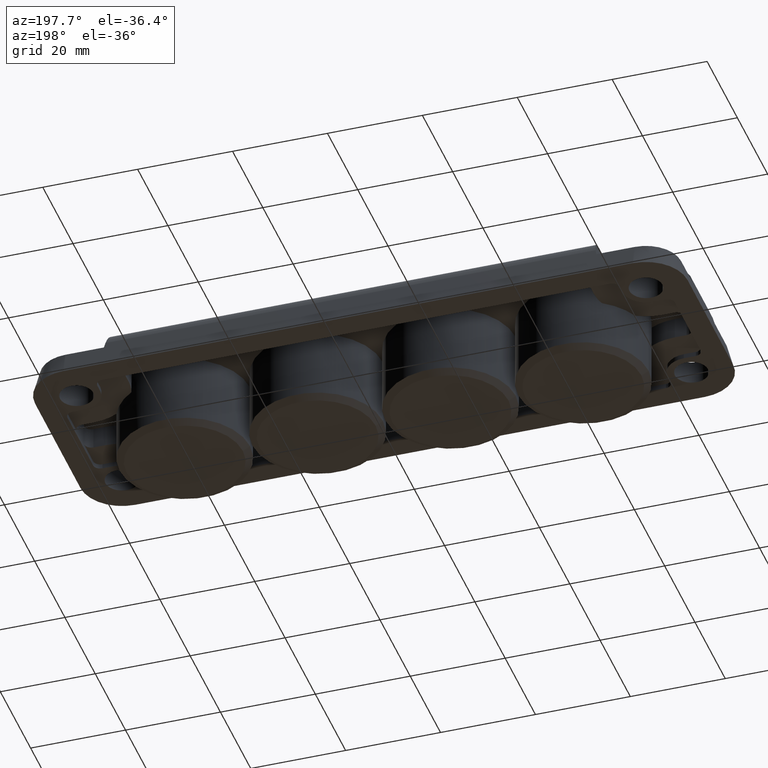
[diagram: clean part render]
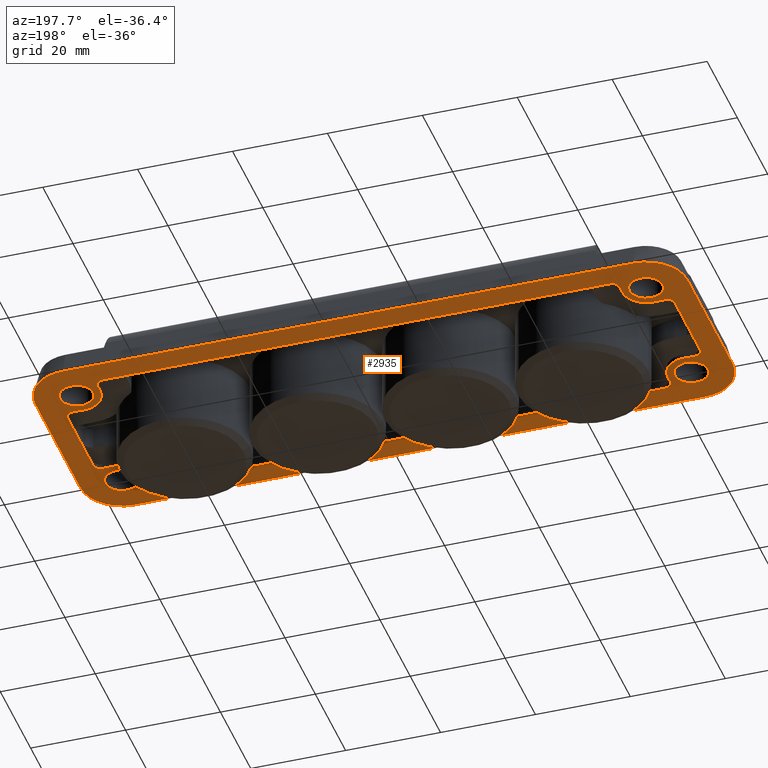
[diagram: same view with one face highlighted and labeled with its STEP entity id]
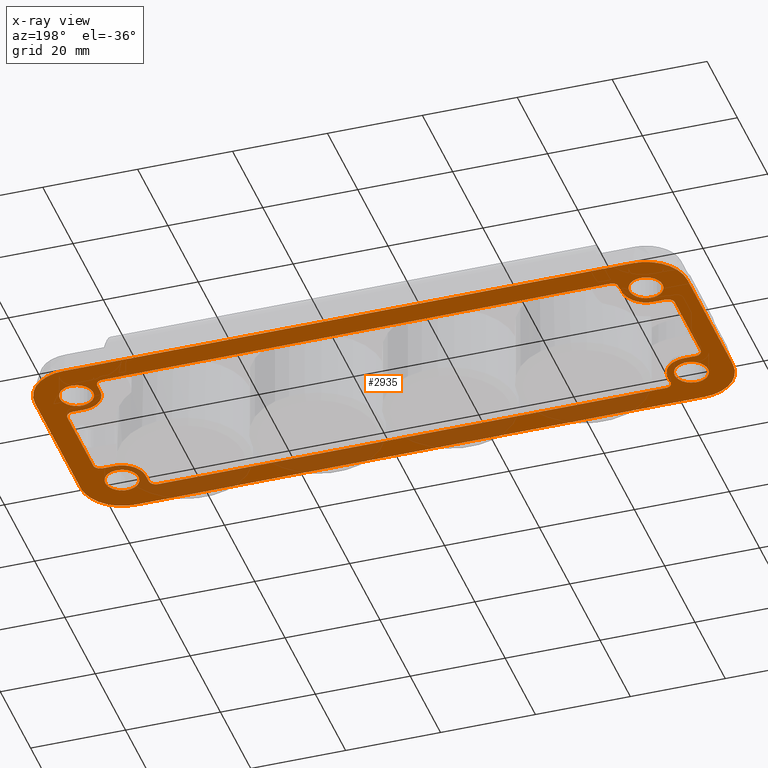
[diagram: x-ray of the same camera — body ghosted, the highlighted face saturated]
A machine part, auxiliary view. The second image highlights one B-rep face of the part: STEP entity #2935.
The next image is the same camera in x-ray: the body ghosted, the highlighted face saturated — about 23% of this face is hidden behind the body in this view.
In plain terms, the highlighted planar face has unit normal (-0, 0, -1).
Its self-contained STEP definition (entity closure, byte-faithful):
#4 = LINE ( 'NONE', #3397, #3236 ) ;
#12 = EDGE_CURVE ( 'NONE', #2942, #3243, #38, .T. ) ;
#18 = CARTESIAN_POINT ( 'NONE',  ( 55.00000000000000000, 17.00000000000001800, 0.0000000000000000000 ) ) ;
#24 = DIRECTION ( 'NONE',  ( -1.000000000000000000, 0.0000000000000000000, 0.0000000000000000000 ) ) ;
#26 = VERTEX_POINT ( 'NONE', #1358 ) ;
#38 = CIRCLE ( 'NONE', #342, 1.499999999999980500 ) ;
#40 = EDGE_CURVE ( 'NONE', #3297, #2908, #2025, .T. ) ;
#60 = CIRCLE ( 'NONE', #1074, 3.500000000000003100 ) ;
#69 = DIRECTION ( 'NONE',  ( -1.000000000000000000, 0.0000000000000000000, 0.0000000000000000000 ) ) ;
#92 = EDGE_CURVE ( 'NONE', #3829, #3943, #1788, .T. ) ;
#106 = CIRCLE ( 'NONE', #1234, 8.750000000000028400 ) ;
#117 = DIRECTION ( 'NONE',  ( -0.0000000000000000000, -0.0000000000000000000, -1.000000000000000000 ) ) ;
#121 = EDGE_CURVE ( 'NONE', #1900, #3654, #4053, .T. ) ;
#122 = CARTESIAN_POINT ( 'NONE',  ( -62.50000000000000000, 10.00000000000000700, 0.0000000000000000000 ) ) ;
#135 = CARTESIAN_POINT ( 'NONE',  ( -53.50000000000000000, -17.00000000000003200, 0.0000000000000000000 ) ) ;
#144 = CARTESIAN_POINT ( 'NONE',  ( -62.50000000000000000, -8.500000000000019500, 0.0000000000000000000 ) ) ;
#146 = VECTOR ( 'NONE', #1704, 1000.000000000000000 ) ;
#147 = VECTOR ( 'NONE', #1334, 1000.000000000000000 ) ;
#157 = DIRECTION ( 'NONE',  ( -1.000000000000000000, 0.0000000000000000000, 0.0000000000000000000 ) ) ;
#169 = DIRECTION ( 'NONE',  ( -0.0000000000000000000, -0.0000000000000000000, 1.000000000000000000 ) ) ;
#170 = DIRECTION ( 'NONE',  ( -1.000000000000000000, 0.0000000000000000000, 0.0000000000000000000 ) ) ;
#176 = DIRECTION ( 'NONE',  ( 1.000000000000000000, 0.0000000000000000000, 0.0000000000000000000 ) ) ;
#177 = VERTEX_POINT ( 'NONE', #1125 ) ;
#187 = ORIENTED_EDGE ( 'NONE', *, *, #3375, .F. ) ;
#240 = CARTESIAN_POINT ( 'NONE',  ( -63.50000000000000000, -15.00000000000000500, 0.0000000000000000000 ) ) ;
#256 = CARTESIAN_POINT ( 'NONE',  ( 60.00000000000000000, -14.99999999999999300, 0.0000000000000000000 ) ) ;
#257 = EDGE_CURVE ( 'NONE', #3768, #3829, #2709, .T. ) ;
#266 = DIRECTION ( 'NONE',  ( 0.0000000000000000000, 0.0000000000000000000, 1.000000000000000000 ) ) ;
#270 = VERTEX_POINT ( 'NONE', #3022 ) ;
#274 = AXIS2_PLACEMENT_3D ( 'NONE', #2004, #169, #157 ) ;
#294 = LINE ( 'NONE', #2955, #3219 ) ;
#296 = CIRCLE ( 'NONE', #3322, 8.750000000000028400 ) ;
#314 = CARTESIAN_POINT ( 'NONE',  ( -60.00000000000000000, -15.00000000000000500, 0.0000000000000000000 ) ) ;
#327 = DIRECTION ( 'NONE',  ( 0.0000000000000000000, 0.0000000000000000000, 1.000000000000000000 ) ) ;
#331 = CARTESIAN_POINT ( 'NONE',  ( -60.00000000000000000, 14.99999999999999500, 0.0000000000000000000 ) ) ;
#342 = AXIS2_PLACEMENT_3D ( 'NONE', #1048, #3571, #725 ) ;
#346 = CARTESIAN_POINT ( 'NONE',  ( 55.00000000000000700, -15.00000000000001800, 0.0000000000000000000 ) ) ;
#347 = FACE_BOUND ( 'NONE', #2104, .T. ) ;
#349 = CARTESIAN_POINT ( 'NONE',  ( -53.50000000000000000, -18.49999999999999600, 0.0000000000000000000 ) ) ;
#356 = DIRECTION ( 'NONE',  ( -1.000000000000000000, -0.0000000000000000000, -0.0000000000000000000 ) ) ;
#364 = CIRCLE ( 'NONE', #1610, 1.500000000000001300 ) ;
#389 = CARTESIAN_POINT ( 'NONE',  ( 60.00000000000000000, -15.00000000000001200, 0.0000000000000000000 ) ) ;
#395 = CARTESIAN_POINT ( 'NONE',  ( 64.00000000000000000, 8.500000000000007100, 0.0000000000000000000 ) ) ;
#410 = VERTEX_POINT ( 'NONE', #2516 ) ;
#416 = DIRECTION ( 'NONE',  ( -1.000000000000000000, -0.0000000000000000000, -0.0000000000000000000 ) ) ;
#422 = CARTESIAN_POINT ( 'NONE',  ( 54.99999999999999300, -17.00000000000003200, 0.0000000000000000000 ) ) ;
#433 = EDGE_CURVE ( 'NONE', #410, #2942, #582, .T. ) ;
#455 = DIRECTION ( 'NONE',  ( 0.0000000000000000000, 0.0000000000000000000, 1.000000000000000000 ) ) ;
#461 = LINE ( 'NONE', #3664, #3598 ) ;
#487 = VERTEX_POINT ( 'NONE', #2503 ) ;
#488 = VECTOR ( 'NONE', #416, 1000.000000000000000 ) ;
#489 = EDGE_CURVE ( 'NONE', #1102, #177, #3515, .T. ) ;
#507 = CARTESIAN_POINT ( 'NONE',  ( -68.75000000000001400, 14.99999999999999600, 0.0000000000000000000 ) ) ;
#511 = EDGE_CURVE ( 'NONE', #1609, #3297, #1741, .T. ) ;
#525 = VERTEX_POINT ( 'NONE', #2877 ) ;
#527 = DIRECTION ( 'NONE',  ( -1.000000000000000000, 0.0000000000000000000, 0.0000000000000000000 ) ) ;
#553 = EDGE_CURVE ( 'NONE', #1598, #410, #4058, .T. ) ;
#582 = LINE ( 'NONE', #2462, #3361 ) ;
#583 = AXIS2_PLACEMENT_3D ( 'NONE', #1588, #1294, #3753 ) ;
#596 = CIRCLE ( 'NONE', #3995, 1.499999999999980500 ) ;
#600 = DIRECTION ( 'NONE',  ( 1.000000000000000000, 0.0000000000000000000, 0.0000000000000000000 ) ) ;
#604 = CARTESIAN_POINT ( 'NONE',  ( 68.75000000000001400, 14.99999999999999600, 0.0000000000000000000 ) ) ;
#622 = EDGE_CURVE ( 'NONE', #1848, #2315, #1599, .T. ) ;
#634 = DIRECTION ( 'NONE',  ( -1.000000000000000000, 0.0000000000000000000, 0.0000000000000000000 ) ) ;
#643 = AXIS2_PLACEMENT_3D ( 'NONE', #2685, #1786, #3328 ) ;
#647 = CARTESIAN_POINT ( 'NONE',  ( 60.00000000000000700, -10.00000000000002100, 0.0000000000000000000 ) ) ;
#659 = DIRECTION ( 'NONE',  ( -1.000000000000000000, 0.0000000000000000000, 0.0000000000000000000 ) ) ;
#668 = EDGE_CURVE ( 'NONE', #3559, #1859, #924, .T. ) ;
#681 = CIRCLE ( 'NONE', #583, 3.500000000000003100 ) ;
#703 = CARTESIAN_POINT ( 'NONE',  ( 60.00000000000000700, -10.00000000000002100, 0.0000000000000000000 ) ) ;
#719 = DIRECTION ( 'NONE',  ( 1.000000000000000000, 0.0000000000000000000, 0.0000000000000000000 ) ) ;
#725 = DIRECTION ( 'NONE',  ( -1.000000000000000000, 0.0000000000000000000, 0.0000000000000000000 ) ) ;
#741 = DIRECTION ( 'NONE',  ( -1.000000000000000000, 0.0000000000000000000, 0.0000000000000000000 ) ) ;
#810 = CARTESIAN_POINT ( 'NONE',  ( -62.50000000000000000, -10.00000000000002100, 0.0000000000000000000 ) ) ;
#830 = CARTESIAN_POINT ( 'NONE',  ( 60.00000000000000700, 23.75000000000001400, 0.0000000000000000000 ) ) ;
#831 = VERTEX_POINT ( 'NONE', #3939 ) ;
#834 = CARTESIAN_POINT ( 'NONE',  ( 53.50000000000000000, -17.00000000000003200, 0.0000000000000000000 ) ) ;
#840 = DIRECTION ( 'NONE',  ( 1.000000000000000000, 0.0000000000000000000, 0.0000000000000000000 ) ) ;
#846 = CIRCLE ( 'NONE', #2132, 3.500000000000003100 ) ;
#854 = ORIENTED_EDGE ( 'NONE', *, *, #3841, .F. ) ;
#858 = DIRECTION ( 'NONE',  ( 0.0000000000000000000, 0.0000000000000000000, -1.000000000000000000 ) ) ;
#880 = VERTEX_POINT ( 'NONE', #2430 ) ;
#884 = EDGE_CURVE ( 'NONE', #487, #1817, #296, .T. ) ;
#890 = CIRCLE ( 'NONE', #1618, 8.750000000000021300 ) ;
#894 = DIRECTION ( 'NONE',  ( 0.0000000000000000000, 0.0000000000000000000, 1.000000000000000000 ) ) ;
#897 = CARTESIAN_POINT ( 'NONE',  ( 68.75000000000002800, -14.99999999999997700, 0.0000000000000000000 ) ) ;
#902 = EDGE_CURVE ( 'NONE', #2908, #26, #2620, .T. ) ;
#919 = AXIS2_PLACEMENT_3D ( 'NONE', #2276, #2913, #2892 ) ;
#924 = CIRCLE ( 'NONE', #3905, 1.500000000000001300 ) ;
#926 = LINE ( 'NONE', #1070, #1174 ) ;
#931 = FACE_OUTER_BOUND ( 'NONE', #2268, .T. ) ;
#936 = DIRECTION ( 'NONE',  ( 0.0000000000000000000, 0.0000000000000000000, 1.000000000000000000 ) ) ;
#939 = CARTESIAN_POINT ( 'NONE',  ( -60.00000000000000000, 14.99999999999999500, 0.0000000000000000000 ) ) ;
#943 = CARTESIAN_POINT ( 'NONE',  ( -60.00000000000001400, -23.75000000000000700, 0.0000000000000000000 ) ) ;
#964 = DIRECTION ( 'NONE',  ( 0.0000000000000000000, -1.000000000000000000, 0.0000000000000000000 ) ) ;
#970 = ORIENTED_EDGE ( 'NONE', *, *, #3152, .T. ) ;
#979 = EDGE_CURVE ( 'NONE', #880, #2403, #681, .T. ) ;
#980 = DIRECTION ( 'NONE',  ( -1.000000000000000000, -0.0000000000000000000, -0.0000000000000000000 ) ) ;
#994 = DIRECTION ( 'NONE',  ( -1.000000000000000000, 0.0000000000000000000, 0.0000000000000000000 ) ) ;
#997 = ORIENTED_EDGE ( 'NONE', *, *, #553, .F. ) ;
#1001 = EDGE_CURVE ( 'NONE', #2555, #3557, #2326, .T. ) ;
#1006 = ORIENTED_EDGE ( 'NONE', *, *, #257, .F. ) ;
#1027 = DIRECTION ( 'NONE',  ( 0.0000000000000000000, 0.0000000000000000000, 1.000000000000000000 ) ) ;
#1038 = DIRECTION ( 'NONE',  ( -1.000000000000000000, 0.0000000000000000000, 0.0000000000000000000 ) ) ;
#1040 = EDGE_CURVE ( 'NONE', #3848, #3768, #2125, .T. ) ;
#1048 = CARTESIAN_POINT ( 'NONE',  ( -53.50000000000000700, 17.00000000000001800, 0.0000000000000000000 ) ) ;
#1061 = CARTESIAN_POINT ( 'NONE',  ( -60.00000000000000700, 14.99999999999999300, 0.0000000000000000000 ) ) ;
#1068 = ORIENTED_EDGE ( 'NONE', *, *, #622, .T. ) ;
#1070 = CARTESIAN_POINT ( 'NONE',  ( -60.00000000000000700, -10.00000000000002100, 0.0000000000000000000 ) ) ;
#1074 = AXIS2_PLACEMENT_3D ( 'NONE', #389, #1352, #69 ) ;
#1102 = VERTEX_POINT ( 'NONE', #2885 ) ;
#1110 = CARTESIAN_POINT ( 'NONE',  ( 54.99999999999999300, -17.00000000000003200, 0.0000000000000000000 ) ) ;
#1121 = EDGE_CURVE ( 'NONE', #2403, #880, #1307, .T. ) ;
#1125 = CARTESIAN_POINT ( 'NONE',  ( 54.99999999999999300, 15.00000000000000700, 0.0000000000000000000 ) ) ;
#1131 = EDGE_CURVE ( 'NONE', #3447, #1598, #1362, .T. ) ;
#1133 = DIRECTION ( 'NONE',  ( -0.0000000000000000000, -0.0000000000000000000, 1.000000000000000000 ) ) ;
#1151 = ORIENTED_EDGE ( 'NONE', *, *, #3147, .F. ) ;
#1153 = ORIENTED_EDGE ( 'NONE', *, *, #979, .T. ) ;
#1174 = VECTOR ( 'NONE', #1983, 1000.000000000000000 ) ;
#1183 = CARTESIAN_POINT ( 'NONE',  ( -60.00000000000001400, -23.74999999999999600, 0.0000000000000000000 ) ) ;
#1218 = CARTESIAN_POINT ( 'NONE',  ( -64.00000000000000000, -8.500000000000024900, 0.0000000000000000000 ) ) ;
#1234 = AXIS2_PLACEMENT_3D ( 'NONE', #2434, #894, #600 ) ;
#1242 = DIRECTION ( 'NONE',  ( 0.0000000000000000000, 0.0000000000000000000, 1.000000000000000000 ) ) ;
#1249 = VERTEX_POINT ( 'NONE', #3912 ) ;
#1258 = CIRCLE ( 'NONE', #1776, 4.999999999999990200 ) ;
#1269 = DIRECTION ( 'NONE',  ( 0.0000000000000000000, 0.0000000000000000000, 1.000000000000000000 ) ) ;
#1281 = CIRCLE ( 'NONE', #274, 5.000000000000004400 ) ;
#1294 = DIRECTION ( 'NONE',  ( 0.0000000000000000000, 0.0000000000000000000, 1.000000000000000000 ) ) ;
#1304 = CARTESIAN_POINT ( 'NONE',  ( 56.49999999999999300, -15.00000000000001200, 0.0000000000000000000 ) ) ;
#1307 = CIRCLE ( 'NONE', #3160, 3.500000000000003100 ) ;
#1334 = DIRECTION ( 'NONE',  ( 1.000000000000000000, -0.0000000000000000000, -0.0000000000000000000 ) ) ;
#1336 = VERTEX_POINT ( 'NONE', #830 ) ;
#1349 = ORIENTED_EDGE ( 'NONE', *, *, #3071, .F. ) ;
#1352 = DIRECTION ( 'NONE',  ( 0.0000000000000000000, 0.0000000000000000000, 1.000000000000000000 ) ) ;
#1358 = CARTESIAN_POINT ( 'NONE',  ( -54.99999999999998600, -15.00000000000002000, 0.0000000000000000000 ) ) ;
#1359 = AXIS2_PLACEMENT_3D ( 'NONE', #2612, #455, #170 ) ;
#1362 = LINE ( 'NONE', #3562, #147 ) ;
#1372 = CARTESIAN_POINT ( 'NONE',  ( -54.99999999999997900, -17.00000000000003200, 0.0000000000000000000 ) ) ;
#1374 = EDGE_CURVE ( 'NONE', #831, #3848, #364, .T. ) ;
#1390 = EDGE_LOOP ( 'NONE', ( #3816, #2610 ) ) ;
#1392 = ORIENTED_EDGE ( 'NONE', *, *, #1040, .F. ) ;
#1403 = EDGE_CURVE ( 'NONE', #3991, #3106, #461, .T. ) ;
#1450 = ORIENTED_EDGE ( 'NONE', *, *, #1600, .F. ) ;
#1465 = EDGE_CURVE ( 'NONE', #1967, #1249, #60, .T. ) ;
#1474 = EDGE_CURVE ( 'NONE', #3654, #2805, #2838, .T. ) ;
#1500 = ORIENTED_EDGE ( 'NONE', *, *, #1374, .F. ) ;
#1522 = DIRECTION ( 'NONE',  ( 3.469446951953592900E-015, 1.000000000000000000, 0.0000000000000000000 ) ) ;
#1544 = DIRECTION ( 'NONE',  ( -1.000000000000000000, 0.0000000000000000000, 0.0000000000000000000 ) ) ;
#1583 = AXIS2_PLACEMENT_3D ( 'NONE', #135, #2281, #2602 ) ;
#1588 = CARTESIAN_POINT ( 'NONE',  ( 60.00000000000000000, 14.99999999999998800, 0.0000000000000000000 ) ) ;
#1598 = VERTEX_POINT ( 'NONE', #3631 ) ;
#1599 = CIRCLE ( 'NONE', #1359, 3.500000000000003100 ) ;
#1600 = EDGE_CURVE ( 'NONE', #177, #1900, #1281, .T. ) ;
#1609 = VERTEX_POINT ( 'NONE', #1994 ) ;
#1610 = AXIS2_PLACEMENT_3D ( 'NONE', #3696, #858, #527 ) ;
#1611 = CARTESIAN_POINT ( 'NONE',  ( 62.50000000000000000, -10.00000000000002100, 0.0000000000000000000 ) ) ;
#1614 = CARTESIAN_POINT ( 'NONE',  ( -63.50000000000000000, 14.99999999999999500, 0.0000000000000000000 ) ) ;
#1618 = AXIS2_PLACEMENT_3D ( 'NONE', #3849, #1027, #994 ) ;
#1650 = CARTESIAN_POINT ( 'NONE',  ( -53.50000000000000700, 18.49999999999999600, 0.0000000000000000000 ) ) ;
#1655 = CIRCLE ( 'NONE', #2375, 3.500000000000003100 ) ;
#1661 = ORIENTED_EDGE ( 'NONE', *, *, #1474, .F. ) ;
#1674 = DIRECTION ( 'NONE',  ( 1.000000000000000000, 0.0000000000000000000, 0.0000000000000000000 ) ) ;
#1675 = VERTEX_POINT ( 'NONE', #3303 ) ;
#1693 = VECTOR ( 'NONE', #964, 1000.000000000000000 ) ;
#1704 = DIRECTION ( 'NONE',  ( 3.469446951953592900E-015, -1.000000000000000000, -0.0000000000000000000 ) ) ;
#1717 = DIRECTION ( 'NONE',  ( 0.0000000000000000000, 0.0000000000000000000, 1.000000000000000000 ) ) ;
#1730 = ORIENTED_EDGE ( 'NONE', *, *, #884, .F. ) ;
#1737 = EDGE_LOOP ( 'NONE', ( #2100, #1153 ) ) ;
#1741 = LINE ( 'NONE', #349, #488 ) ;
#1747 = CARTESIAN_POINT ( 'NONE',  ( -60.00000000000000000, -14.99999999999999300, 0.0000000000000000000 ) ) ;
#1769 = ORIENTED_EDGE ( 'NONE', *, *, #433, .F. ) ;
#1776 = AXIS2_PLACEMENT_3D ( 'NONE', #1747, #1133, #3962 ) ;
#1786 = DIRECTION ( 'NONE',  ( -0.0000000000000000000, -0.0000000000000000000, -1.000000000000000000 ) ) ;
#1788 = LINE ( 'NONE', #422, #146 ) ;
#1812 = DIRECTION ( 'NONE',  ( 0.0000000000000000000, 0.0000000000000000000, 1.000000000000000000 ) ) ;
#1817 = VERTEX_POINT ( 'NONE', #507 ) ;
#1821 = CARTESIAN_POINT ( 'NONE',  ( -60.00000000000000700, 14.99999999999999300, 0.0000000000000000000 ) ) ;
#1830 = AXIS2_PLACEMENT_3D ( 'NONE', #331, #936, #659 ) ;
#1833 = ORIENTED_EDGE ( 'NONE', *, *, #40, .F. ) ;
#1835 = EDGE_CURVE ( 'NONE', #1249, #1967, #846, .T. ) ;
#1848 = VERTEX_POINT ( 'NONE', #3120 ) ;
#1854 = CARTESIAN_POINT ( 'NONE',  ( 63.50000000000000000, 14.99999999999998800, 0.0000000000000000000 ) ) ;
#1859 = VERTEX_POINT ( 'NONE', #1218 ) ;
#1900 = VERTEX_POINT ( 'NONE', #2152 ) ;
#1902 = CARTESIAN_POINT ( 'NONE',  ( -64.00000000000000000, 8.500000000000007100, 0.0000000000000000000 ) ) ;
#1944 = VECTOR ( 'NONE', #2794, 1000.000000000000000 ) ;
#1957 = CARTESIAN_POINT ( 'NONE',  ( -53.50000000000000000, -18.49999999999999600, 0.0000000000000000000 ) ) ;
#1967 = VERTEX_POINT ( 'NONE', #1304 ) ;
#1983 = DIRECTION ( 'NONE',  ( -1.000000000000000000, 0.0000000000000000000, 0.0000000000000000000 ) ) ;
#1984 = ORIENTED_EDGE ( 'NONE', *, *, #2856, .F. ) ;
#1993 = CIRCLE ( 'NONE', #1830, 3.500000000000003100 ) ;
#1994 = CARTESIAN_POINT ( 'NONE',  ( 53.50000000000000000, -18.50000000000001100, 0.0000000000000000000 ) ) ;
#1995 = LINE ( 'NONE', #943, #1944 ) ;
#2004 = CARTESIAN_POINT ( 'NONE',  ( 60.00000000000000700, 15.00000000000000700, 0.0000000000000000000 ) ) ;
#2025 = CIRCLE ( 'NONE', #1583, 1.499999999999980500 ) ;
#2100 = ORIENTED_EDGE ( 'NONE', *, *, #1121, .T. ) ;
#2104 = EDGE_LOOP ( 'NONE', ( #1068, #970 ) ) ;
#2125 = LINE ( 'NONE', #647, #2714 ) ;
#2128 = ORIENTED_EDGE ( 'NONE', *, *, #3632, .F. ) ;
#2132 = AXIS2_PLACEMENT_3D ( 'NONE', #3715, #1242, #634 ) ;
#2152 = CARTESIAN_POINT ( 'NONE',  ( 60.00000000000000700, 10.00000000000000700, 0.0000000000000000000 ) ) ;
#2180 = CIRCLE ( 'NONE', #3233, 1.500000000000001300 ) ;
#2188 = EDGE_LOOP ( 'NONE', ( #3688, #3498 ) ) ;
#2206 = ORIENTED_EDGE ( 'NONE', *, *, #902, .F. ) ;
#2223 = DIRECTION ( 'NONE',  ( 0.0000000000000000000, 0.0000000000000000000, 1.000000000000000000 ) ) ;
#2232 = CARTESIAN_POINT ( 'NONE',  ( 64.00000000000000000, 8.500000000000007100, 0.0000000000000000000 ) ) ;
#2268 = EDGE_LOOP ( 'NONE', ( #1730, #3591, #4023, #3458, #3693, #3936, #1349, #3974 ) ) ;
#2276 = CARTESIAN_POINT ( 'NONE',  ( 62.50000000000000000, 8.500000000000005300, 0.0000000000000000000 ) ) ;
#2278 = FACE_BOUND ( 'NONE', #2188, .T. ) ;
#2281 = DIRECTION ( 'NONE',  ( -0.0000000000000000000, -0.0000000000000000000, -1.000000000000000000 ) ) ;
#2283 = CARTESIAN_POINT ( 'NONE',  ( -64.00000000000000000, 8.500000000000007100, 0.0000000000000000000 ) ) ;
#2309 = DIRECTION ( 'NONE',  ( -0.0000000000000000000, -1.000000000000000000, -0.0000000000000000000 ) ) ;
#2315 = VERTEX_POINT ( 'NONE', #240 ) ;
#2320 = ORIENTED_EDGE ( 'NONE', *, *, #12, .F. ) ;
#2326 = CIRCLE ( 'NONE', #3731, 3.500000000000003100 ) ;
#2329 = CARTESIAN_POINT ( 'NONE',  ( 60.00000000000000700, 10.00000000000000700, 0.0000000000000000000 ) ) ;
#2374 = VECTOR ( 'NONE', #3732, 1000.000000000000000 ) ;
#2375 = AXIS2_PLACEMENT_3D ( 'NONE', #314, #327, #1544 ) ;
#2399 = EDGE_CURVE ( 'NONE', #3106, #1336, #106, .T. ) ;
#2403 = VERTEX_POINT ( 'NONE', #1854 ) ;
#2407 = VERTEX_POINT ( 'NONE', #1183 ) ;
#2411 = DIRECTION ( 'NONE',  ( 0.0000000000000000000, 0.0000000000000000000, -1.000000000000000000 ) ) ;
#2430 = CARTESIAN_POINT ( 'NONE',  ( 56.49999999999999300, 14.99999999999998800, 0.0000000000000000000 ) ) ;
#2434 = CARTESIAN_POINT ( 'NONE',  ( 60.00000000000000700, 14.99999999999999300, 0.0000000000000000000 ) ) ;
#2439 = EDGE_CURVE ( 'NONE', #1336, #487, #4, .T. ) ;
#2452 = CARTESIAN_POINT ( 'NONE',  ( -60.00000000000001400, -14.99999999999997900, 0.0000000000000000000 ) ) ;
#2462 = CARTESIAN_POINT ( 'NONE',  ( -55.00000000000000000, 17.00000000000001800, 0.0000000000000000000 ) ) ;
#2467 = ORIENTED_EDGE ( 'NONE', *, *, #1131, .F. ) ;
#2496 = EDGE_CURVE ( 'NONE', #2407, #1675, #1995, .T. ) ;
#2503 = CARTESIAN_POINT ( 'NONE',  ( -60.00000000000000700, 23.75000000000002100, 0.0000000000000000000 ) ) ;
#2516 = CARTESIAN_POINT ( 'NONE',  ( -54.99999999999997900, 15.00000000000000700, 0.0000000000000000000 ) ) ;
#2520 = VECTOR ( 'NONE', #840, 1000.000000000000000 ) ;
#2529 = AXIS2_PLACEMENT_3D ( 'NONE', #2452, #1717, #176 ) ;
#2555 = VERTEX_POINT ( 'NONE', #1614 ) ;
#2580 = FACE_BOUND ( 'NONE', #1390, .T. ) ;
#2584 = EDGE_CURVE ( 'NONE', #3243, #3997, #2780, .T. ) ;
#2591 = EDGE_CURVE ( 'NONE', #1675, #3991, #890, .T. ) ;
#2593 = PLANE ( 'NONE',  #2819 ) ;
#2602 = DIRECTION ( 'NONE',  ( 1.000000000000000000, 0.0000000000000000000, 0.0000000000000000000 ) ) ;
#2610 = ORIENTED_EDGE ( 'NONE', *, *, #1001, .T. ) ;
#2612 = CARTESIAN_POINT ( 'NONE',  ( -60.00000000000000000, -15.00000000000000500, 0.0000000000000000000 ) ) ;
#2620 = LINE ( 'NONE', #2742, #3812 ) ;
#2631 = CARTESIAN_POINT ( 'NONE',  ( -55.00000000000000000, 17.00000000000001800, 0.0000000000000000000 ) ) ;
#2650 = EDGE_CURVE ( 'NONE', #3557, #2555, #1993, .T. ) ;
#2685 = CARTESIAN_POINT ( 'NONE',  ( 53.50000000000000700, 17.00000000000001800, 0.0000000000000000000 ) ) ;
#2709 = CIRCLE ( 'NONE', #3828, 4.999999999999990200 ) ;
#2711 = DIRECTION ( 'NONE',  ( -1.000000000000000000, 0.0000000000000000000, 0.0000000000000000000 ) ) ;
#2714 = VECTOR ( 'NONE', #356, 1000.000000000000000 ) ;
#2742 = CARTESIAN_POINT ( 'NONE',  ( -54.99999999999999300, -17.00000000000003200, 0.0000000000000000000 ) ) ;
#2751 = ORIENTED_EDGE ( 'NONE', *, *, #121, .F. ) ;
#2780 = LINE ( 'NONE', #3178, #3383 ) ;
#2782 = DIRECTION ( 'NONE',  ( -1.000000000000000000, 0.0000000000000000000, 0.0000000000000000000 ) ) ;
#2791 = EDGE_LOOP ( 'NONE', ( #1450, #3851, #4057, #3289, #2320, #1769, #997, #2467, #1151, #1984, #2951, #187, #2934, #2206, #1833, #3610, #2128, #3788, #1006, #1392, #1500, #854, #1661, #2751 ) ) ;
#2794 = DIRECTION ( 'NONE',  ( 1.000000000000000000, 0.0000000000000000000, 0.0000000000000000000 ) ) ;
#2797 = CARTESIAN_POINT ( 'NONE',  ( -62.50000000000000000, 8.500000000000005300, 0.0000000000000000000 ) ) ;
#2805 = VERTEX_POINT ( 'NONE', #395 ) ;
#2819 = AXIS2_PLACEMENT_3D ( 'NONE', #1061, #3270, #741 ) ;
#2838 = CIRCLE ( 'NONE', #919, 1.500000000000001300 ) ;
#2855 = CARTESIAN_POINT ( 'NONE',  ( 60.00000000000000000, 14.99999999999998800, 0.0000000000000000000 ) ) ;
#2856 = EDGE_CURVE ( 'NONE', #1859, #3201, #3122, .T. ) ;
#2875 = DIRECTION ( 'NONE',  ( 1.000000000000000000, 0.0000000000000000000, 0.0000000000000000000 ) ) ;
#2877 = CARTESIAN_POINT ( 'NONE',  ( -68.75000000000001400, -14.99999999999997900, 0.0000000000000000000 ) ) ;
#2885 = CARTESIAN_POINT ( 'NONE',  ( 54.99999999999998600, 17.00000000000001800, 0.0000000000000000000 ) ) ;
#2892 = DIRECTION ( 'NONE',  ( 1.000000000000000000, 0.0000000000000000000, 0.0000000000000000000 ) ) ;
#2908 = VERTEX_POINT ( 'NONE', #1372 ) ;
#2913 = DIRECTION ( 'NONE',  ( -0.0000000000000000000, -0.0000000000000000000, -1.000000000000000000 ) ) ;
#2934 = ORIENTED_EDGE ( 'NONE', *, *, #4026, .F. ) ;
#2935 = ADVANCED_FACE ( 'NONE', ( #2278, #3776, #347, #2580, #3963, #931 ), #2593, .T. ) ;
#2942 = VERTEX_POINT ( 'NONE', #2631 ) ;
#2951 = ORIENTED_EDGE ( 'NONE', *, *, #668, .F. ) ;
#2955 = CARTESIAN_POINT ( 'NONE',  ( -68.75000000000001400, -14.99999999999997900, 0.0000000000000000000 ) ) ;
#3016 = CARTESIAN_POINT ( 'NONE',  ( 62.50000000000000000, 10.00000000000000700, 0.0000000000000000000 ) ) ;
#3022 = CARTESIAN_POINT ( 'NONE',  ( -60.00000000000000700, -10.00000000000000200, 0.0000000000000000000 ) ) ;
#3068 = DIRECTION ( 'NONE',  ( -1.000000000000000000, 0.0000000000000000000, 0.0000000000000000000 ) ) ;
#3071 = EDGE_CURVE ( 'NONE', #525, #2407, #4017, .T. ) ;
#3106 = VERTEX_POINT ( 'NONE', #604 ) ;
#3120 = CARTESIAN_POINT ( 'NONE',  ( -56.49999999999999300, -15.00000000000000500, 0.0000000000000000000 ) ) ;
#3122 = LINE ( 'NONE', #2283, #3677 ) ;
#3147 = EDGE_CURVE ( 'NONE', #3201, #3447, #2180, .T. ) ;
#3152 = EDGE_CURVE ( 'NONE', #2315, #1848, #1655, .T. ) ;
#3160 = AXIS2_PLACEMENT_3D ( 'NONE', #2855, #3208, #1038 ) ;
#3178 = CARTESIAN_POINT ( 'NONE',  ( -53.50000000000000700, 18.49999999999998200, 0.0000000000000000000 ) ) ;
#3182 = CARTESIAN_POINT ( 'NONE',  ( -59.99999999999999300, 15.00000000000002800, 0.0000000000000000000 ) ) ;
#3201 = VERTEX_POINT ( 'NONE', #1902 ) ;
#3208 = DIRECTION ( 'NONE',  ( 0.0000000000000000000, 0.0000000000000000000, 1.000000000000000000 ) ) ;
#3219 = VECTOR ( 'NONE', #2309, 1000.000000000000000 ) ;
#3233 = AXIS2_PLACEMENT_3D ( 'NONE', #2797, #3460, #2782 ) ;
#3236 = VECTOR ( 'NONE', #980, 1000.000000000000000 ) ;
#3243 = VERTEX_POINT ( 'NONE', #1650 ) ;
#3270 = DIRECTION ( 'NONE',  ( -0.0000000000000000000, 0.0000000000000000000, -1.000000000000000000 ) ) ;
#3289 = ORIENTED_EDGE ( 'NONE', *, *, #2584, .F. ) ;
#3297 = VERTEX_POINT ( 'NONE', #1957 ) ;
#3303 = CARTESIAN_POINT ( 'NONE',  ( 60.00000000000001400, -23.75000000000000700, 0.0000000000000000000 ) ) ;
#3322 = AXIS2_PLACEMENT_3D ( 'NONE', #1821, #266, #3068 ) ;
#3328 = DIRECTION ( 'NONE',  ( 1.000000000000000000, 0.0000000000000000000, 0.0000000000000000000 ) ) ;
#3361 = VECTOR ( 'NONE', #4036, 1000.000000000000000 ) ;
#3375 = EDGE_CURVE ( 'NONE', #270, #3559, #926, .T. ) ;
#3383 = VECTOR ( 'NONE', #2875, 1000.000000000000000 ) ;
#3397 = CARTESIAN_POINT ( 'NONE',  ( -60.00000000000000700, 23.75000000000002100, 0.0000000000000000000 ) ) ;
#3407 = AXIS2_PLACEMENT_3D ( 'NONE', #3182, #2223, #719 ) ;
#3426 = LINE ( 'NONE', #2232, #1693 ) ;
#3447 = VERTEX_POINT ( 'NONE', #122 ) ;
#3458 = ORIENTED_EDGE ( 'NONE', *, *, #1403, .F. ) ;
#3460 = DIRECTION ( 'NONE',  ( 0.0000000000000000000, 0.0000000000000000000, -1.000000000000000000 ) ) ;
#3498 = ORIENTED_EDGE ( 'NONE', *, *, #1465, .T. ) ;
#3515 = LINE ( 'NONE', #18, #2374 ) ;
#3557 = VERTEX_POINT ( 'NONE', #3648 ) ;
#3559 = VERTEX_POINT ( 'NONE', #810 ) ;
#3562 = CARTESIAN_POINT ( 'NONE',  ( -60.00000000000000700, 10.00000000000000700, 0.0000000000000000000 ) ) ;
#3571 = DIRECTION ( 'NONE',  ( 0.0000000000000000000, 0.0000000000000000000, -1.000000000000000000 ) ) ;
#3591 = ORIENTED_EDGE ( 'NONE', *, *, #2439, .F. ) ;
#3595 = EDGE_CURVE ( 'NONE', #3997, #1102, #3630, .T. ) ;
#3598 = VECTOR ( 'NONE', #3972, 1000.000000000000000 ) ;
#3610 = ORIENTED_EDGE ( 'NONE', *, *, #511, .F. ) ;
#3630 = CIRCLE ( 'NONE', #643, 1.499999999999980500 ) ;
#3631 = CARTESIAN_POINT ( 'NONE',  ( -60.00000000000000700, 10.00000000000000700, 0.0000000000000000000 ) ) ;
#3632 = EDGE_CURVE ( 'NONE', #3943, #1609, #596, .T. ) ;
#3648 = CARTESIAN_POINT ( 'NONE',  ( -56.49999999999999300, 14.99999999999999500, 0.0000000000000000000 ) ) ;
#3654 = VERTEX_POINT ( 'NONE', #3016 ) ;
#3664 = CARTESIAN_POINT ( 'NONE',  ( 68.75000000000001400, -14.99999999999997900, 0.0000000000000000000 ) ) ;
#3677 = VECTOR ( 'NONE', #3857, 1000.000000000000000 ) ;
#3688 = ORIENTED_EDGE ( 'NONE', *, *, #1835, .T. ) ;
#3693 = ORIENTED_EDGE ( 'NONE', *, *, #2591, .F. ) ;
#3696 = CARTESIAN_POINT ( 'NONE',  ( 62.50000000000000000, -8.500000000000019500, 0.0000000000000000000 ) ) ;
#3704 = DIRECTION ( 'NONE',  ( 1.000000000000000000, 0.0000000000000000000, 0.0000000000000000000 ) ) ;
#3707 = CARTESIAN_POINT ( 'NONE',  ( 53.50000000000000700, 18.49999999999998200, 0.0000000000000000000 ) ) ;
#3715 = CARTESIAN_POINT ( 'NONE',  ( 60.00000000000000000, -15.00000000000001200, 0.0000000000000000000 ) ) ;
#3731 = AXIS2_PLACEMENT_3D ( 'NONE', #939, #1269, #24 ) ;
#3732 = DIRECTION ( 'NONE',  ( -3.469446951953592900E-015, -1.000000000000000000, 0.0000000000000000000 ) ) ;
#3753 = DIRECTION ( 'NONE',  ( -1.000000000000000000, 0.0000000000000000000, 0.0000000000000000000 ) ) ;
#3768 = VERTEX_POINT ( 'NONE', #703 ) ;
#3776 = FACE_BOUND ( 'NONE', #1737, .T. ) ;
#3788 = ORIENTED_EDGE ( 'NONE', *, *, #92, .F. ) ;
#3812 = VECTOR ( 'NONE', #1522, 1000.000000000000000 ) ;
#3816 = ORIENTED_EDGE ( 'NONE', *, *, #2650, .T. ) ;
#3828 = AXIS2_PLACEMENT_3D ( 'NONE', #256, #1812, #3704 ) ;
#3829 = VERTEX_POINT ( 'NONE', #346 ) ;
#3841 = EDGE_CURVE ( 'NONE', #2805, #831, #3426, .T. ) ;
#3848 = VERTEX_POINT ( 'NONE', #1611 ) ;
#3849 = CARTESIAN_POINT ( 'NONE',  ( 60.00000000000001400, -14.99999999999997900, 0.0000000000000000000 ) ) ;
#3851 = ORIENTED_EDGE ( 'NONE', *, *, #489, .F. ) ;
#3857 = DIRECTION ( 'NONE',  ( -0.0000000000000000000, 1.000000000000000000, -0.0000000000000000000 ) ) ;
#3905 = AXIS2_PLACEMENT_3D ( 'NONE', #144, #117, #1674 ) ;
#3912 = CARTESIAN_POINT ( 'NONE',  ( 63.50000000000000000, -15.00000000000001200, 0.0000000000000000000 ) ) ;
#3919 = EDGE_CURVE ( 'NONE', #1817, #525, #294, .T. ) ;
#3936 = ORIENTED_EDGE ( 'NONE', *, *, #2496, .F. ) ;
#3939 = CARTESIAN_POINT ( 'NONE',  ( 64.00000000000000000, -8.500000000000024900, 0.0000000000000000000 ) ) ;
#3943 = VERTEX_POINT ( 'NONE', #1110 ) ;
#3962 = DIRECTION ( 'NONE',  ( -1.000000000000000000, 0.0000000000000000000, 0.0000000000000000000 ) ) ;
#3963 = FACE_BOUND ( 'NONE', #2791, .T. ) ;
#3972 = DIRECTION ( 'NONE',  ( 0.0000000000000000000, 1.000000000000000000, 0.0000000000000000000 ) ) ;
#3974 = ORIENTED_EDGE ( 'NONE', *, *, #3919, .F. ) ;
#3991 = VERTEX_POINT ( 'NONE', #897 ) ;
#3995 = AXIS2_PLACEMENT_3D ( 'NONE', #834, #2411, #2711 ) ;
#3997 = VERTEX_POINT ( 'NONE', #3707 ) ;
#4017 = CIRCLE ( 'NONE', #2529, 8.750000000000021300 ) ;
#4023 = ORIENTED_EDGE ( 'NONE', *, *, #2399, .F. ) ;
#4026 = EDGE_CURVE ( 'NONE', #26, #270, #1258, .T. ) ;
#4036 = DIRECTION ( 'NONE',  ( -3.469446951953592900E-015, 1.000000000000000000, -0.0000000000000000000 ) ) ;
#4053 = LINE ( 'NONE', #2329, #2520 ) ;
#4057 = ORIENTED_EDGE ( 'NONE', *, *, #3595, .F. ) ;
#4058 = CIRCLE ( 'NONE', #3407, 5.000000000000011500 ) ;